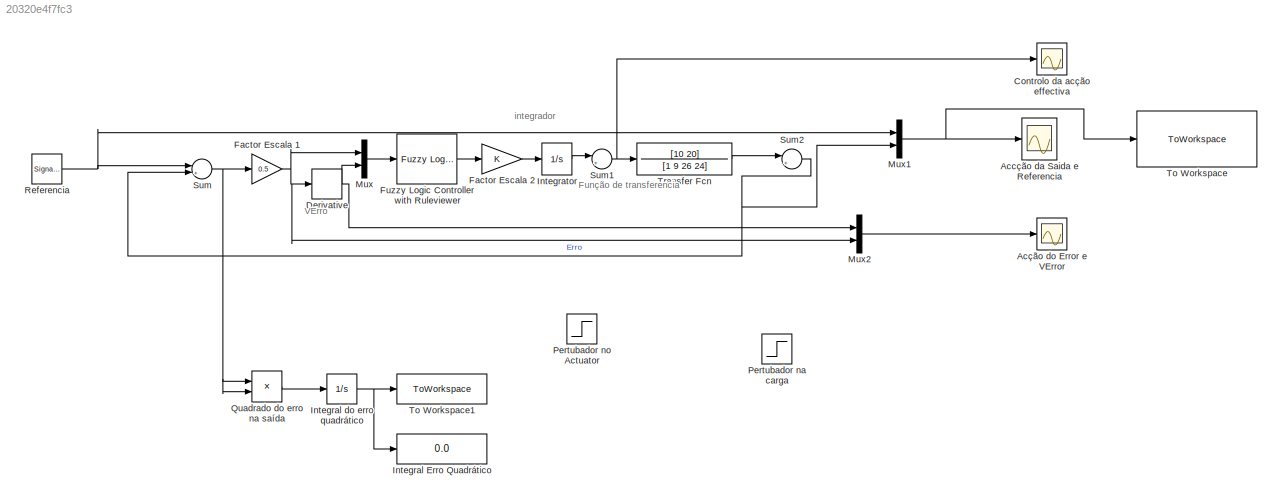
MODEL slx_20320e4f7fc3
KIND model
CONFIG AbsTol = auto
CONFIG EnableMultiTasking = off
CONFIG FixedStep = auto
CONFIG MaxStep = auto
CONFIG MinStep = auto
CONFIG RelTol = 1e-3
CONFIG SampleTimeConstraint = Unconstrained
CONFIG Solver = VariableStepAuto
CONFIG SolverName = VariableStepAuto
CONFIG StartTime = 0.0
CONFIG StopTime = 600
BLOCK [Scope] Accção da Saida e Referencia
  Floating = off
  NumInputPorts = 1
  Ports = [1]
  ScopeSpecificationString = Simulink.scopes.TimeScopeBlockCfg('CurrentConfiguration', extmgr.ConfigurationSet(extmgr.Configuration('Core','General UI',true),extmgr.Configuration('Core','Source UI',true),extmgr.Configuration('Sources','WiredSimulink',true),extmgr.Configuration('Visuals','Time Domain',true,'SerializedDisplays',{struct('MinYLimReal','-1.5565','MaxYLimReal','1.15238','YLabelReal','','MinYLimMag','0.00000','MaxYL...<+1403ch>
BLOCK [Scope] Acção do Error e VError
  Floating = off
  NumInputPorts = 1
  Ports = [1]
  ScopeSpecificationString = Simulink.scopes.TimeScopeBlockCfg('CurrentConfiguration', extmgr.ConfigurationSet(extmgr.Configuration('Core','General UI',true),extmgr.Configuration('Core','Source UI',true),extmgr.Configuration('Sources','WiredSimulink',true,'DataLoggingVariableName','ScopeData2'),extmgr.Configuration('Visuals','Time Domain',true,'SerializedDisplays',{struct('MinYLimReal','-34359738368.25904','MaxYLimReal','3092...<+1493ch>
BLOCK [Scope] Controlo da acção effectiva
  Floating = off
  NumInputPorts = 1
  Ports = [1]
  ScopeSpecificationString = Simulink.scopes.TimeScopeBlockCfg('CurrentConfiguration', extmgr.ConfigurationSet(extmgr.Configuration('Core','General UI',true),extmgr.Configuration('Core','Source UI',true),extmgr.Configuration('Sources','WiredSimulink',true,'DataLoggingVariableName','ScopeData1'),extmgr.Configuration('Visuals','Time Domain',true,'SerializedDisplays',{struct('MinYLimReal','-1.4836','MaxYLimReal','0.73224','YLabe...<+1414ch>
BLOCK [Derivative] Derivative
BLOCK [Gain] Factor Escala 1
  Gain = 0.5
  OutDataTypeStr = Inherit: Inherit via internal rule
  ParamDataTypeStr = Inherit: Inherit via internal rule
  SaturateOnIntegerOverflow = off
BLOCK [Gain] Factor Escala 2
  OutDataTypeStr = Inherit: Inherit via internal rule
  ParamDataTypeStr = Inherit: Inherit via internal rule
  SaturateOnIntegerOverflow = off
BLOCK [Reference] Fuzzy Logic Controller with Ruleviewer  REF=fuzblock/Fuzzy Logic   (lib defined in mdl_858b3b3e7478)
Controller 
with Ruleviewer
  Ports = [1, 1]
  SourceBlock = fuzblock/Fuzzy Logic \nController \nwith Ruleviewer
  SourceProductBaseCode = FL
  SourceProductName = Fuzzy Logic Toolbox
  SourceType = Fuzzy Inference System
BLOCK [Display] Integral Erro Quadrático
  Decimation = 1
  Ports = [1]
BLOCK [Integrator] Integral do erro quadrático
  Ports = [1, 1]
BLOCK [Integrator] Integrator
  Ports = [1, 1]
BLOCK [Mux] Mux
  DisplayOption = bar
  Inputs = 2
  Ports = [2, 1]
BLOCK [Mux] Mux1
  DisplayOption = bar
  Inputs = 2
  Ports = [2, 1]
BLOCK [Mux] Mux2
  DisplayOption = bar
  Inputs = 2
  Ports = [2, 1]
BLOCK [Step] Pertubador na carga
  SampleTime = 0
  Time = 190
BLOCK [Step] Pertubador no Actuator
  SampleTime = 0
  Time = 100
BLOCK [Product] Quadrado do erro na saída
  InputSameDT = off
  OutDataTypeStr = Inherit: Inherit via internal rule
  Ports = [2, 1]
  RndMeth = Floor
  SaturateOnIntegerOverflow = off
BLOCK [SignalGenerator] Referencia
  Frequency = 0.1
  Ports = [0, 1]
  Units = rad/sec
BLOCK [Sum] Sum
  InputSameDT = off
  Inputs = |+-
  OutDataTypeStr = Inherit: Inherit via internal rule
  Ports = [2, 1]
  SaturateOnIntegerOverflow = off
BLOCK [Sum] Sum1
  InputSameDT = off
  Inputs = |+-
  OutDataTypeStr = Inherit: Inherit via internal rule
  Ports = [2, 1]
  SaturateOnIntegerOverflow = off
BLOCK [Sum] Sum2
  InputSameDT = off
  Inputs = |+-
  OutDataTypeStr = Inherit: Inherit via internal rule
  Ports = [2, 1]
  SaturateOnIntegerOverflow = off
BLOCK [ToWorkspace] To Workspace
  FixptAsFi = on
  MaxDataPoints = inf
  Ports = [1]
  SampleTime = -1
  Save2DSignal = 3-D array (concatenate along third dimension)
  SaveFormat = Timeseries
  VariableName = out_ref_time_series
BLOCK [ToWorkspace] To Workspace1
  FixptAsFi = on
  MaxDataPoints = inf
  Ports = [1]
  SampleTime = -1
  Save2DSignal = 3-D array (concatenate along third dimension)
  SaveFormat = Timeseries
  VariableName = Performance
BLOCK [TransferFcn] Transfer Fcn
  Denominator = [1 9 26 24]
  Numerator = [10 20]
ANNOTATION (root): VErro
ANNOTATION (root): Função de transferencia
ANNOTATION (root): integrador
NET Derivative:1 -> Mux2:1, Mux:2
NET Factor Escala 1:1 -> Derivative:1, Mux2:2, Mux:1
LINE Factor Escala 2:1 -> Integrator:1
LINE Fuzzy Logic Controller with Ruleviewer:1 -> Factor Escala 2:1
NET Integral do erro quadrático:1 -> Integral Erro Quadrático:1, To Workspace1:1
LINE Integrator:1 -> Sum1:1
NET Mux1:1 -> Accção da Saida e Referencia:1, To Workspace:1
LINE Mux2:1 -> Acção do Error e VError:1
LINE Mux:1 -> Fuzzy Logic Controller with Ruleviewer:1
LINE Quadrado do erro na saída:1 -> Integral do erro quadrático:1
NET Referencia:1 -> Mux1:1, Sum:1
NET Sum1:1 -> Controlo da acção effectiva:1, Transfer Fcn:1
NET Sum2:1 -> Mux1:2, Sum:2
NET Sum:1 -> Factor Escala 1:1, Quadrado do erro na saída:1, Quadrado do erro na saída:2
LINE Transfer Fcn:1 -> Sum2:1
note: NET lines group one-source signal fan-out (src -> all destinations, sorted); 1:1 wires keep LINE
